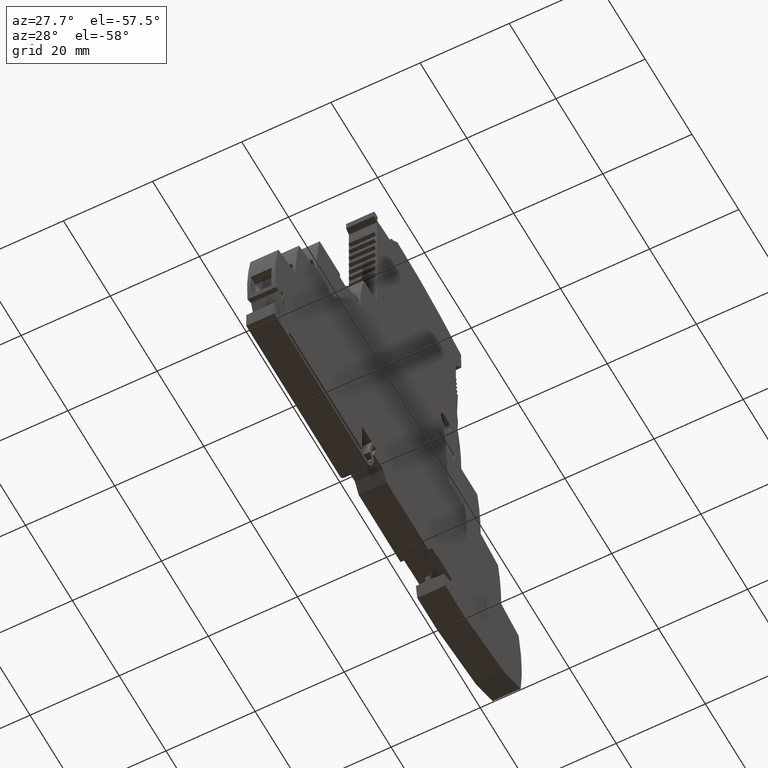
[diagram: clean part render]
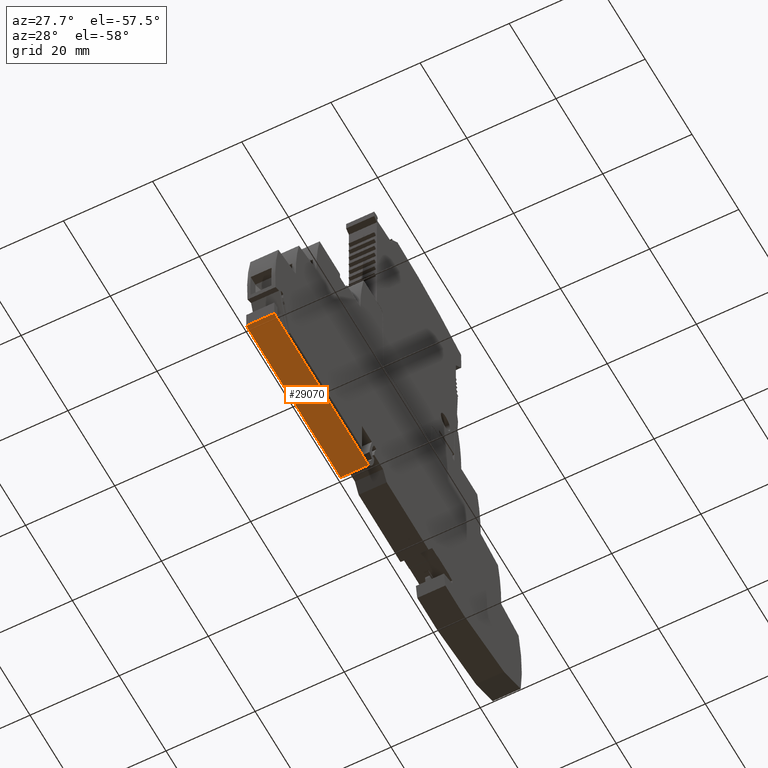
[diagram: same view with one face highlighted and labeled with its STEP entity id]
A machine part, auxiliary view. The second image highlights one B-rep face of the part: STEP entity #29070.
In plain terms, the highlighted planar face has unit normal (0, 0, 1).
Its self-contained STEP definition (entity closure, byte-faithful):
#2390=CARTESIAN_POINT('',(-76.0814532745701,-6.99999789892485,
-7.724665840465E-9));
#2400=VERTEX_POINT('',#2390);
#2430=CARTESIAN_POINT('',(-36.6028890050387,-6.9999998587209,
-7.72466783503389E-9));
#2440=DIRECTION('',(-0.999999999999999,4.9642030929163E-8,
5.05228344487795E-17));
#2450=VECTOR('',#2440,1.);
#2460=LINE('',#2430,#2450);
#2470=CARTESIAN_POINT('',(-35.7706957610773,-6.99999990003275,
-7.72466787707872E-9));
#2480=VERTEX_POINT('',#2470);
#2490=EDGE_CURVE('',#2480,#2400,#2460,.T.);
#13540=CARTESIAN_POINT('',(-35.7706957610773,-6.99999990698494,
6.29999999911251));
#13550=VERTEX_POINT('',#13540);
#13580=CARTESIAN_POINT('',(0.,-7.00000168271493,6.3000000446248));
#13590=DIRECTION('',(0.999999999999999,-4.96420310428121E-8,
1.27233440234888E-9));
#13600=VECTOR('',#13590,1.);
#13610=LINE('',#13580,#13600);
#13620=CARTESIAN_POINT('',(-76.0814532745701,-6.99999790587705,
6.29999994782375));
#13630=VERTEX_POINT('',#13620);
#13640=EDGE_CURVE('',#13630,#13550,#13610,.T.);
#28560=CARTESIAN_POINT('',(-35.7706957610773,-6.99999990003275,
-7.72466787707876E-9));
#28570=DIRECTION('',(-4.25831752161686E-18,-1.10352358519E-9,1.));
#28580=VECTOR('',#28570,1.);
#28590=LINE('',#28560,#28580);
#28600=EDGE_CURVE('',#2480,#13550,#28590,.T.);
#28910=CARTESIAN_POINT('',(-75.0814532745701,-6.9999979485669,
-7.72466589098784E-9));
#28920=DIRECTION('',(4.96420310414081E-8,0.999999999999999,
1.10352358519E-9));
#28930=DIRECTION('',(-0.999999999999999,4.96420310414081E-8,
5.05228345664501E-17));
#28940=AXIS2_PLACEMENT_3D('',#28910,#28920,#28930);
#28950=PLANE('',#28940);
#28960=ORIENTED_EDGE('',*,*,#2490,.F.);
#28970=CARTESIAN_POINT('',(-76.0814532745701,-6.99999789892487,0.));
#28980=DIRECTION('',(-4.25831741821928E-18,-1.10352358519E-9,1.));
#28990=VECTOR('',#28980,1.);
#29000=LINE('',#28970,#28990);
#29010=EDGE_CURVE('',#2400,#13630,#29000,.T.);
#29020=ORIENTED_EDGE('',*,*,#29010,.F.);
#29030=ORIENTED_EDGE('',*,*,#13640,.F.);
#29040=ORIENTED_EDGE('',*,*,#28600,.T.);
#29050=EDGE_LOOP('',(#29040,#29030,#29020,#28960));
#29060=FACE_OUTER_BOUND('',#29050,.T.);
#29070=ADVANCED_FACE('',(#29060),#28950,.F.);